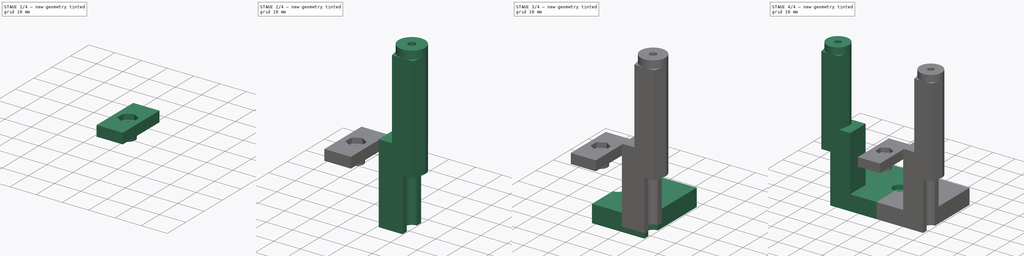
[diagram: build sequence overview — one tinted view per stage of 4, left to right]
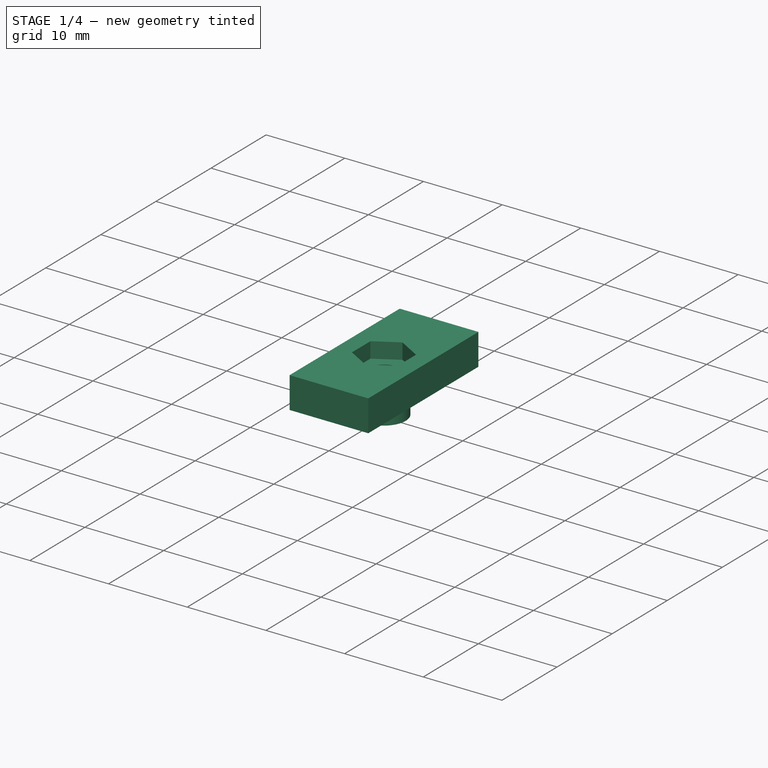
[diagram: stage 1 of 4 — iso view after this stage's code; geometry added in this stage tinted green]
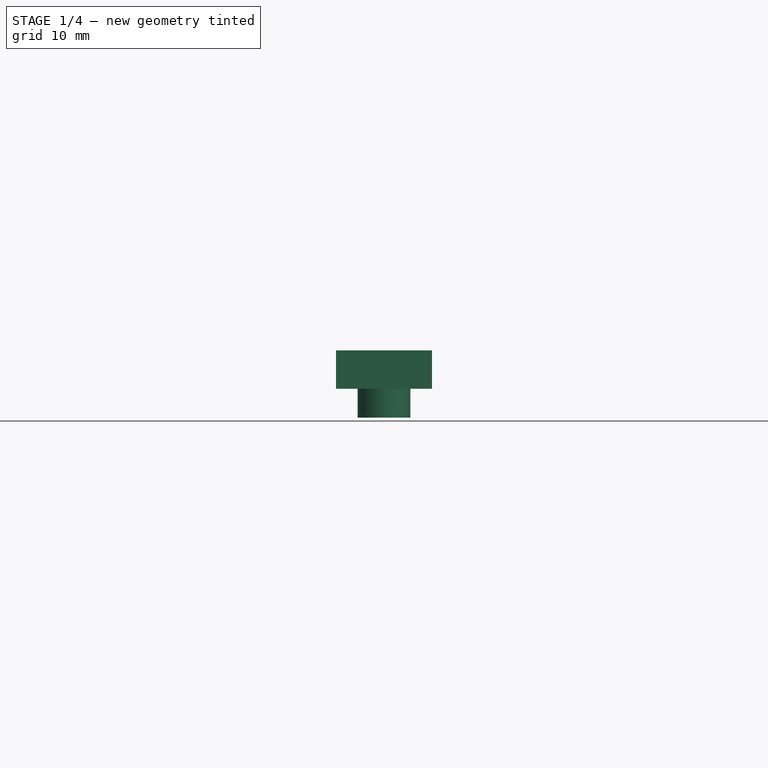
[diagram: stage 1 of 4 — front view after this stage's code; geometry added in this stage tinted green]
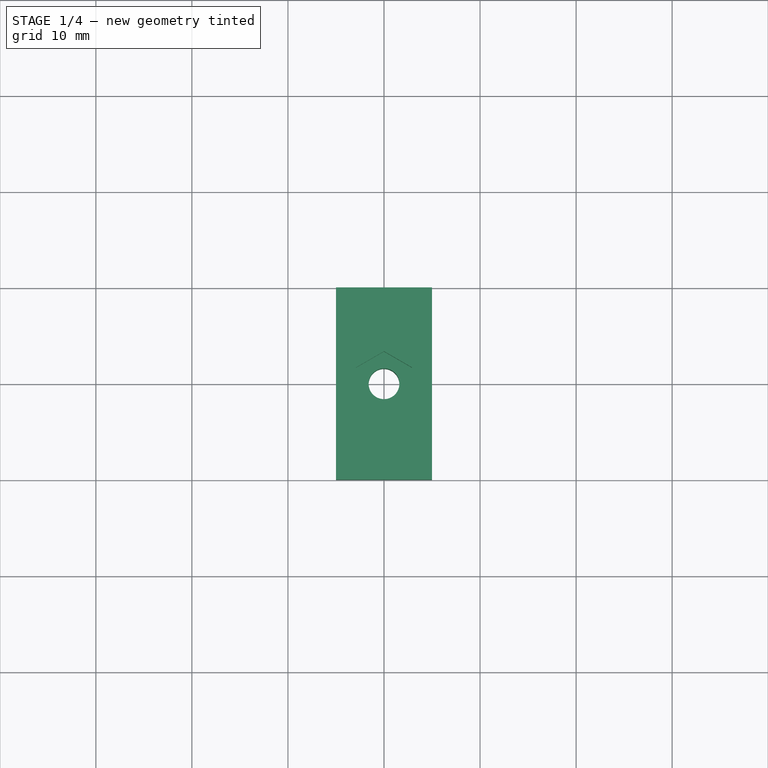
[diagram: stage 1 of 4 — top view after this stage's code; geometry added in this stage tinted green]
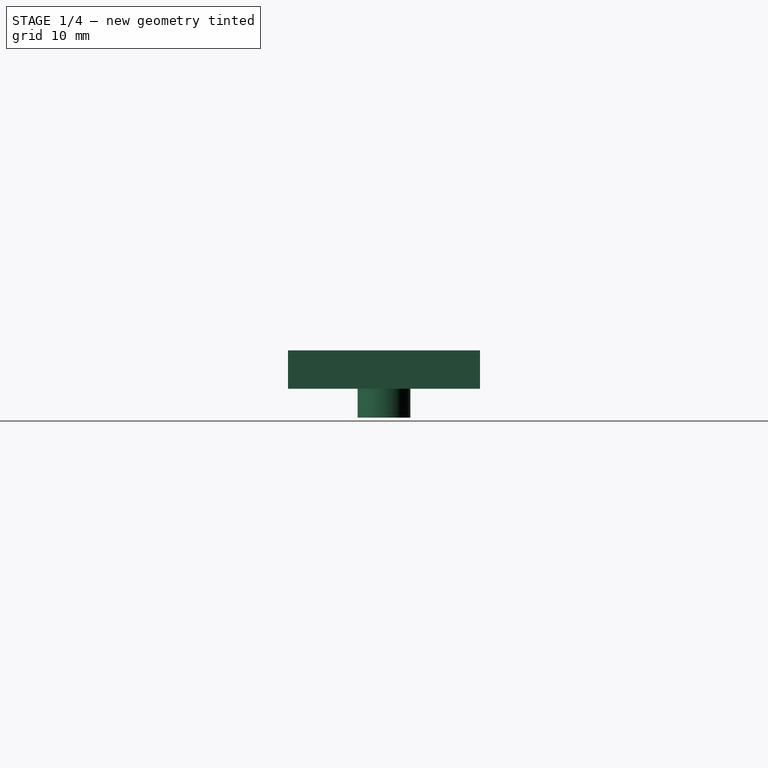
[diagram: stage 1 of 4 — right view after this stage's code; geometry added in this stage tinted green]
FCSTD DOCUMENT  (FreeCAD 0.19R24291 (Git))
Label: phoneclip-tripod
License: All rights reserved
LicenseURL: http://en.wikipedia.org/wiki/All_rights_reserved
objects: Sketcher::SketchObject×9, PartDesign::Pad×8, PartDesign::Body×2, PartDesign::Pocket×1, Part::Mirroring×1, Part::MultiFuse×1
note: 31 computed .brp shape members not serialized (recipe doc carries the construction recipe); baked Part::Feature solids carry a one-line shape summary decoded from their .brp

FEATURE [Sketcher::SketchObject] Sketch006
  FullyConstrained = true
  MapMode = 5
  Support = -> [XY_Plane001]
  sketch-geometry (2):
    g0: Circle CenterX=0 CenterY=0 CenterZ=0 NormalX=0 NormalY=0 NormalZ=1 AngleXU=0 Radius=1.6
    g1: Circle CenterX=0 CenterY=0 CenterZ=0 NormalX=0 NormalY=0 NormalZ=1 AngleXU=0 Radius=2.75
  constraints (4):
    c: Coincident(g0,g-1)
    c: Diameter(g0) = 3.2
    c: Coincident(g1,g0)
    c: Diameter(g1) = 5.5
FEATURE [PartDesign::Pad] Pad005
  Direction = (1,1,1)
  Length = 3
  Length2 = 100
  Profile = -> Sketch006
  Reversed = true
  Type = 0
FEATURE [Sketcher::SketchObject] Sketch007
  FullyConstrained = true
  MapMode = 5
  Support = -> [XY_Plane001]
  sketch-geometry (11):
    g0: LineSegment StartX=0 StartY=-3.34863 StartZ=0 EndX=2.9 EndY=-1.67432 EndZ=0
    g1: LineSegment StartX=2.9 StartY=-1.67432 StartZ=0 EndX=2.9 EndY=1.67432 EndZ=0
    g2: LineSegment StartX=2.9 StartY=1.67432 StartZ=0 EndX=0 EndY=3.34863 EndZ=0
    g3: LineSegment StartX=0 StartY=3.34863 StartZ=0 EndX=-2.9 EndY=1.67432 EndZ=0
    g4: LineSegment StartX=-2.9 StartY=1.67432 StartZ=0 EndX=-2.9 EndY=-1.67432 EndZ=0
    g5: LineSegment StartX=-2.9 StartY=-1.67432 StartZ=0 EndX=0 EndY=-3.34863 EndZ=0
    g6: Circle CenterX=0 CenterY=0 CenterZ=0 NormalX=0 NormalY=0 NormalZ=1 AngleXU=0 Radius=3.34863
    g7: LineSegment StartX=-5 StartY=10 StartZ=0 EndX=5 EndY=10 EndZ=0
    g8: LineSegment StartX=5 StartY=10 StartZ=0 EndX=5 EndY=-10 EndZ=0
    g9: LineSegment StartX=5 StartY=-10 StartZ=0 EndX=-5 EndY=-10 EndZ=0
    g10: LineSegment StartX=-5 StartY=-10 StartZ=0 EndX=-5 EndY=10 EndZ=0
  constraints (26):
    c: Coincident(g0,g1)
    c: Coincident(g1,g2)
    c: Coincident(g2,g3)
    c: Coincident(g3,g4)
    c: Coincident(g4,g5)
    c: Coincident(g5,g0)
    c: Equal(g0, g1-g5) x5
    c: PointOnObject(g0,g6)
    c: PointOnObject(g1,g6)
    c: PointOnObject(g2,g6)
    c: PointOnObject(g3,g6)
    c: PointOnObject(g4,g6)
    c: PointOnObject(g5,g6)
    c: Coincident(g6,g-1)
    c: PointOnObject(g5,g-2)
    c: DistanceX(g4,g0) = 5.8
    c: Coincident(g7,g8)
    c: Coincident(g8,g9)
    c: Coincident(g9,g10)
    c: Coincident(g10,g7)
    c: Horizontal(g9)
    c: Vertical(g10)
    c: Symmetric(g7,g7,g-2)
    c: Symmetric(g8,g7,g-1)
    c: DistanceX(g7,g7) = 10
    c: DistanceY(g8,g8) = 20
FEATURE [Sketcher::SketchObject] Sketch008
  FullyConstrained = true
  MapMode = 5
  Support = -> [XY_Plane001]
  sketch-geometry (2):
    g0: Circle CenterX=0 CenterY=0 CenterZ=0 NormalX=0 NormalY=0 NormalZ=1 AngleXU=0 Radius=3.5
    g1: Circle CenterX=0 CenterY=0 CenterZ=0 NormalX=0 NormalY=0 NormalZ=1 AngleXU=0 Radius=1.6
  constraints (4):
    c: Coincident(g1,g0)
    c: Diameter(g1) = 3.2
    c: Diameter(g0) = 7
    c: Coincident(g1,g-1)
FEATURE [PartDesign::Pad] Pad006
  BaseFeature = -> Pad005
  Direction = (1,1,1)
  Length = 2
  Length2 = 100
  Profile = -> Sketch008
  Type = 0
FEATURE [PartDesign::Pad] Pad007
  BaseFeature = -> Pad006
  Direction = (1,1,1)
  Length = 4
  Length2 = 100
  Profile = -> Sketch007
  Type = 0
FEATURE [PartDesign::Body] Body001  label="nutholder"
  Group = -> [Sketch006,Pad005,Sketch007,Sketch008,Pad006,Pad007]
  Origin = -> Origin001
  Tip = -> Pad007
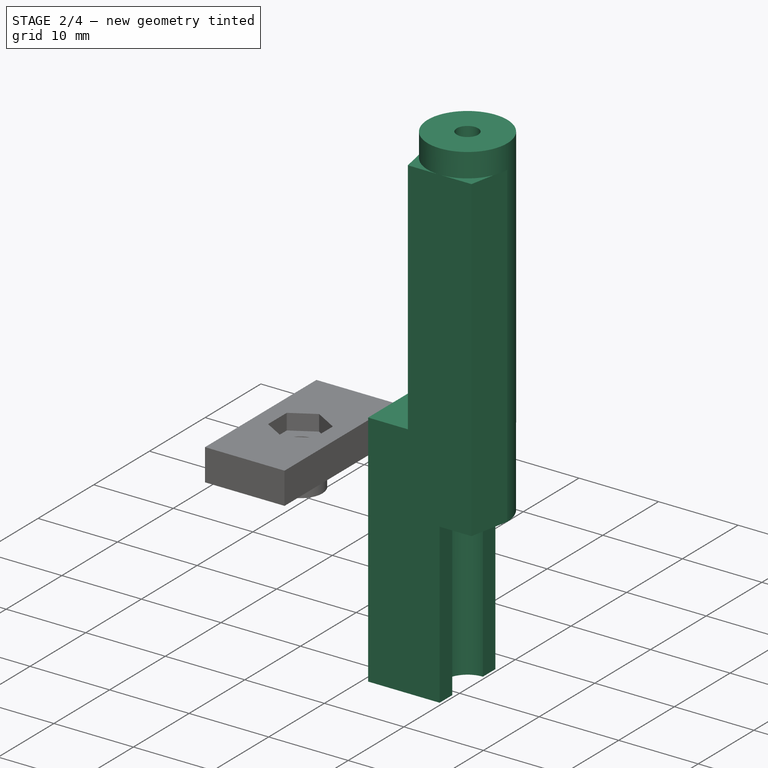
[diagram: stage 2 of 4 — iso view after this stage's code; geometry added in this stage tinted green]
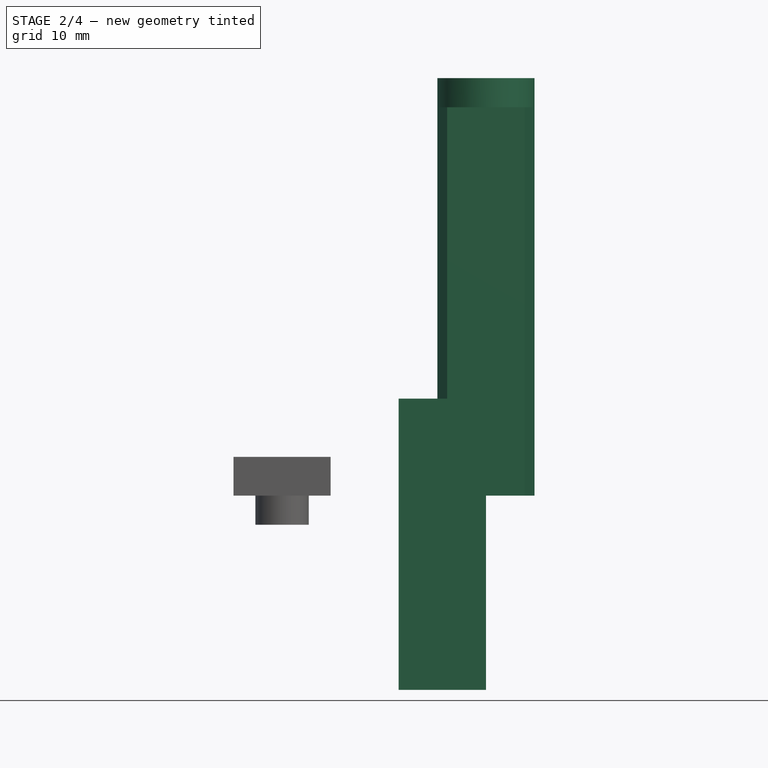
[diagram: stage 2 of 4 — front view after this stage's code; geometry added in this stage tinted green]
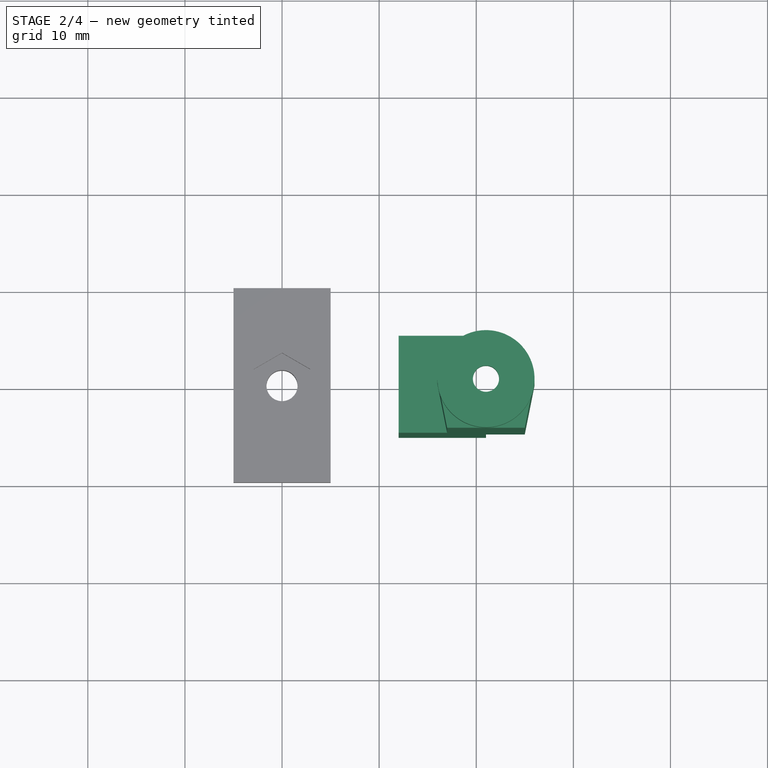
[diagram: stage 2 of 4 — top view after this stage's code; geometry added in this stage tinted green]
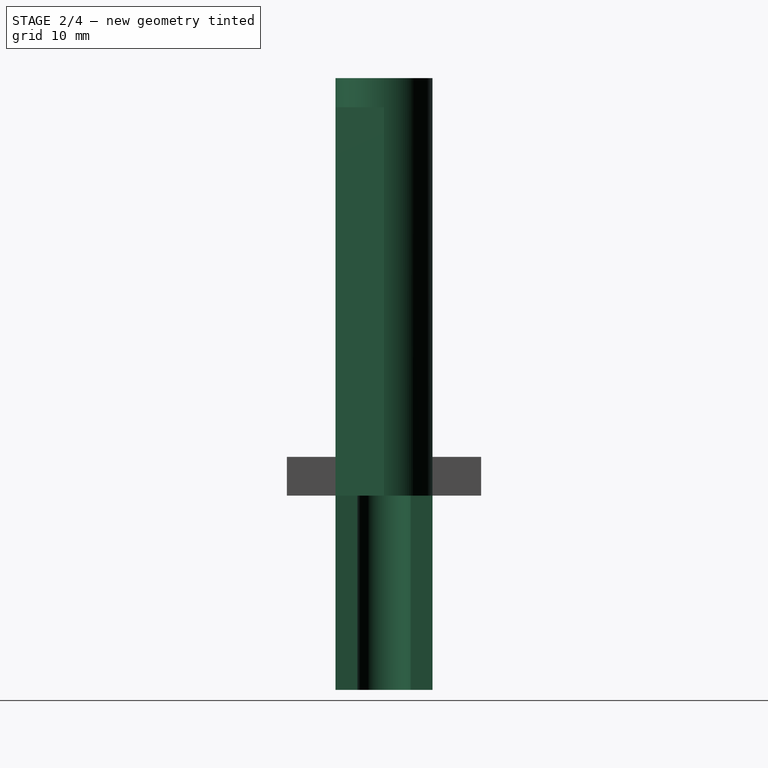
[diagram: stage 2 of 4 — right view after this stage's code; geometry added in this stage tinted green]
FEATURE [Sketcher::SketchObject] Sketch
  FullyConstrained = true
  MapMode = 5
  Support = -> [XY_Plane]
  sketch-geometry (5):
    g0: Circle CenterX=21 CenterY=0 CenterZ=0 NormalX=0 NormalY=0 NormalZ=1 AngleXU=0 Radius=2.75
    g1: ArcOfCircle CenterX=21 CenterY=0 CenterZ=0 NormalX=0 NormalY=0 NormalZ=1 AngleXU=0 Radius=5 StartAngle=0 EndAngle=3.14159
    g2: LineSegment StartX=16 StartY=6e-16 StartZ=0 EndX=17 EndY=-5 EndZ=0
    g3: LineSegment StartX=25 StartY=-5 StartZ=0 EndX=17 EndY=-5 EndZ=0
    g4: LineSegment StartX=25 StartY=-5 StartZ=0 EndX=26 EndY=0 EndZ=0
  constraints (15):
    c: Diameter(g0) = 5.5
    c: Coincident(g1,g0)
    c: PointOnObject(g1,g-1)
    c: PointOnObject(g1,g-1)
    c: Radius(g1) = 5
    c: Coincident(g2,g1)
    c: Coincident(g3,g2)
    c: Horizontal(g3)
    c: Coincident(g4,g3)
    c: Coincident(g4,g1)
    c: DistanceX(g3,g3) = 8
    c: Equal(g2,g4)
    c: DistanceY(g2,g2) = 5
    c: DistanceX(g0) = 21
    c: PointOnObject(g0,g-1)
FEATURE [PartDesign::Pad] Pad  label="selongsong"
  Direction = (1,1,1)
  Length = 40
  Length2 = 100
  Profile = -> Sketch
  Type = 0
FEATURE [Sketcher::SketchObject] Sketch001
  AttachmentOffset = pos=(0,0,40) rot=(0,0,1;0rad)
  FullyConstrained = true
  MapMode = 5
  Placement = pos=(0,0,40) rot=(0,0,1;0rad)
  Support = -> [XY_Plane]
  sketch-geometry (2):
    g0: Circle CenterX=21 CenterY=0 CenterZ=0 NormalX=0 NormalY=0 NormalZ=1 AngleXU=0 Radius=5
    g1: Circle CenterX=21 CenterY=0 CenterZ=0 NormalX=0 NormalY=0 NormalZ=1 AngleXU=0 Radius=1.35
  constraints (5):
    c: PointOnObject(g0,g-1)
    c: Coincident(g1,g0)
    c: Diameter(g0) = 10
    c: Diameter(g1) = 2.7
    c: DistanceX(g0) = 21
FEATURE [PartDesign::Pad] Pad001  label="stopper"
  BaseFeature = -> Pad
  Direction = (1,1,1)
  Length = 3
  Length2 = 100
  Profile = -> Sketch001
  Type = 0
FEATURE [Sketcher::SketchObject] Sketch002
  AttachmentOffset = pos=(0,0,0) rot=(0,1,0;3.14159rad)
  FullyConstrained = true
  MapMode = 5
  Placement = pos=(0,0,0) rot=(0,1,0;3.14159rad)
  Support = -> [XY_Plane]
  sketch-geometry (6):
    g0: LineSegment StartX=-21 StartY=5 StartZ=0 EndX=-12 EndY=5 EndZ=0
    g1: LineSegment StartX=-12 StartY=5 StartZ=0 EndX=-12 EndY=-5 EndZ=0
    g2: LineSegment StartX=-12 StartY=-5 StartZ=0 EndX=-21 EndY=-5 EndZ=0
    g3: ArcOfCircle CenterX=-21 CenterY=0 CenterZ=0 NormalX=0 NormalY=0 NormalZ=1 AngleXU=0 Radius=2.75 StartAngle=4.71239 EndAngle=7.85398
    g4: LineSegment StartX=-21 StartY=2.75 StartZ=0 EndX=-21 EndY=5 EndZ=0
    g5: LineSegment StartX=-21 StartY=-2.75 StartZ=0 EndX=-21 EndY=-5 EndZ=0
  constraints (19):
    c: Horizontal(g0)
    c: Coincident(g1,g0)
    c: Vertical(g1)
    c: Coincident(g2,g1)
    c: Horizontal(g2)
    c: DistanceX(g2,g2) = 9
    c: DistanceY(g1,g1) = 10
    c: Vertical(g0,g2)
    c: PointOnObject(g3,g-1)
    c: DistanceX(g3) = -21
    c: Vertical(g3,g3)
    c: Diameter(g3) = 5.5
    c: Coincident(g4,g3)
    c: Coincident(g4,g0)
    c: Vertical(g4)
    c: Coincident(g5,g3)
    c: Coincident(g5,g2)
    c: Angle(g3) = 3.14159
    c: Equal(g5,g4)
FEATURE [PartDesign::Pad] Pad002  label="sikil"
  BaseFeature = -> Pad001
  Direction = (1,1,1)
  Length = 20
  Length2 = 10
  Profile = -> Sketch002
  Type = 4
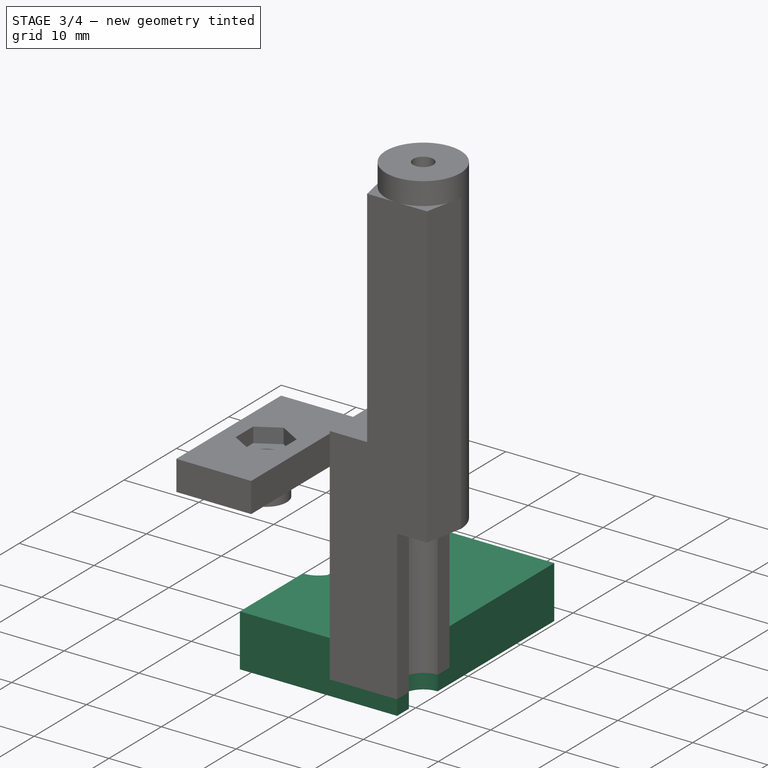
[diagram: stage 3 of 4 — iso view after this stage's code; geometry added in this stage tinted green]
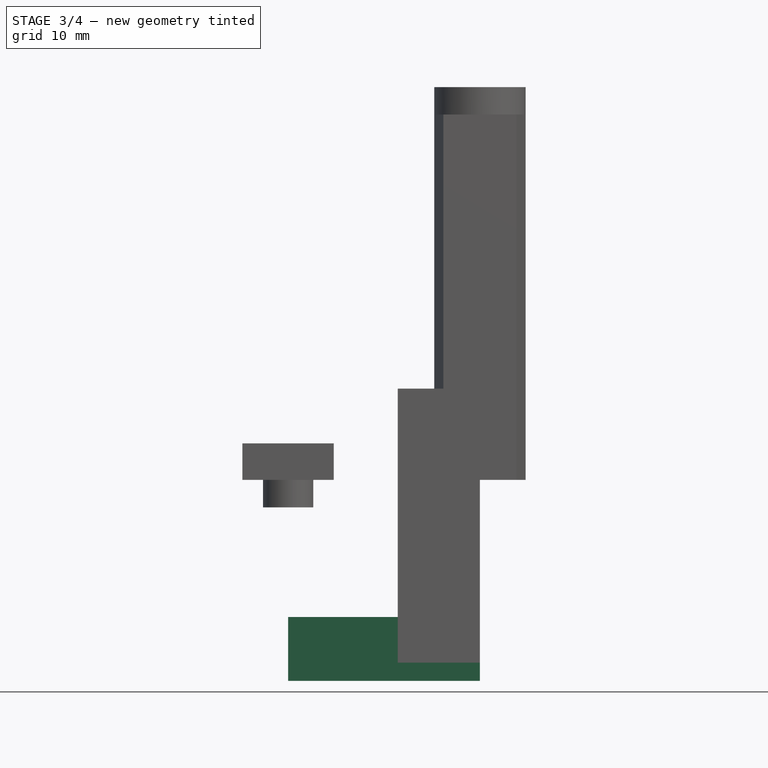
[diagram: stage 3 of 4 — front view after this stage's code; geometry added in this stage tinted green]
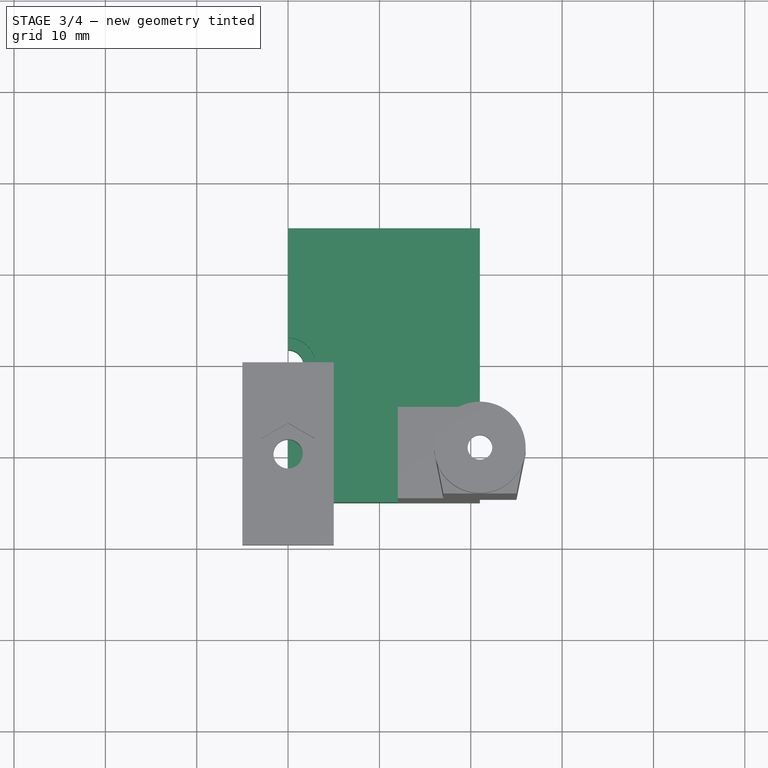
[diagram: stage 3 of 4 — top view after this stage's code; geometry added in this stage tinted green]
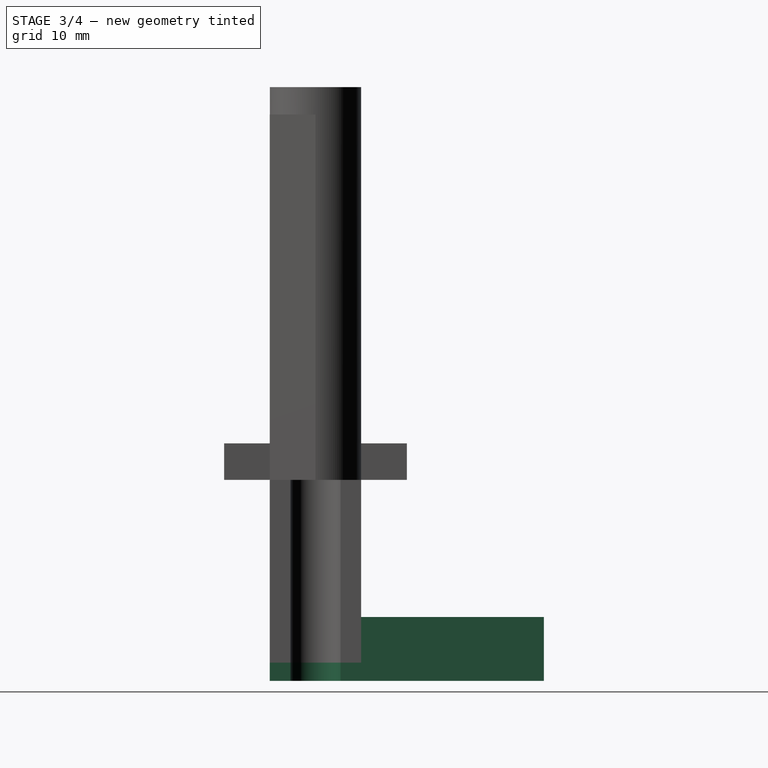
[diagram: stage 3 of 4 — right view after this stage's code; geometry added in this stage tinted green]
FEATURE [Sketcher::SketchObject] Sketch003
  AttachmentOffset = pos=(0,0,-20) rot=(0,1,0;3.14159rad)
  FullyConstrained = true
  MapMode = 5
  Placement = pos=(0,0,-20) rot=(0,1,0;3.14159rad)
  Support = -> [XY_Plane]
  sketch-geometry (8):
    g0: LineSegment StartX=-21 StartY=-5 StartZ=0 EndX=0 EndY=-5 EndZ=0
    g1: LineSegment StartX=0 StartY=25 StartZ=0 EndX=-21 EndY=25 EndZ=0
    g2: ArcOfCircle CenterX=-21 CenterY=0 CenterZ=0 NormalX=0 NormalY=0 NormalZ=1 AngleXU=0 Radius=2.75 StartAngle=4.71239 EndAngle=7.85398
    g3: LineSegment StartX=-21 StartY=2.75 StartZ=0 EndX=-21 EndY=25 EndZ=0
    g4: LineSegment StartX=-21 StartY=-2.75 StartZ=0 EndX=-21 EndY=-5 EndZ=0
    g5: ArcOfCircle CenterX=0 CenterY=10 CenterZ=0 NormalX=0 NormalY=0 NormalZ=1 AngleXU=0 Radius=1.7 StartAngle=1.5708 EndAngle=4.71239
    g6: LineSegment StartX=0 StartY=25 StartZ=0 EndX=0 EndY=11.7 EndZ=0
    g7: LineSegment StartX=-3e-16 StartY=8.3 StartZ=0 EndX=-3e-16 EndY=-5 EndZ=0
  constraints (26):
    c: Horizontal(g0)
    c: Horizontal(g1)
    c: PointOnObject(g1,g-2)
    c: DistanceX(g0,g0) = 21
    c: PointOnObject(g2,g-1)
    c: Coincident(g3,g2)
    c: Coincident(g3,g1)
    c: Vertical(g3)
    c: Coincident(g4,g2)
    c: Coincident(g4,g0)
    c: Vertical(g4)
    c: Diameter(g2) = 5.5
    c: Vertical(g2,g1)
    c: DistanceY(g0,g-1) = 5
    c: Vertical(g2,g2)
    c: DistanceY(g2,g1) = 25
    c: PointOnObject(g5,g-2)
    c: PointOnObject(g5,g-2)
    c: PointOnObject(g5,g-2)
    c: Coincident(g6,g1)
    c: Coincident(g6,g5)
    c: Diameter(g5) = 3.4
    c: DistanceY(g-1,g5) = 10
    c: Coincident(g7,g5)
    c: Coincident(g7,g0)
    c: Vertical(g7)
FEATURE [PartDesign::Pad] Pad003
  BaseFeature = -> Pad002
  Direction = (1,1,1)
  Length = 2
  Length2 = 5
  Profile = -> Sketch003
  Type = 4
FEATURE [Sketcher::SketchObject] Sketch004
  FullyConstrained = true
  MapMode = 5
  Placement = pos=(2.6e-15,0,-15) rot=(0,0,1;0rad)
  Support = -> [Pad003]
  sketch-geometry (1):
    g0: Circle CenterX=0 CenterY=10 CenterZ=0 NormalX=0 NormalY=0 NormalZ=1 AngleXU=0 Radius=3
  constraints (3):
    c: PointOnObject(g0,g-2)
    c: DistanceY(g-1,g0) = 10
    c: Diameter(g0) = 6
FEATURE [PartDesign::Pocket] Pocket
  BaseFeature = -> Pad003
  Length = 2
  Length2 = 100
  Profile = -> Sketch004
  Type = 0
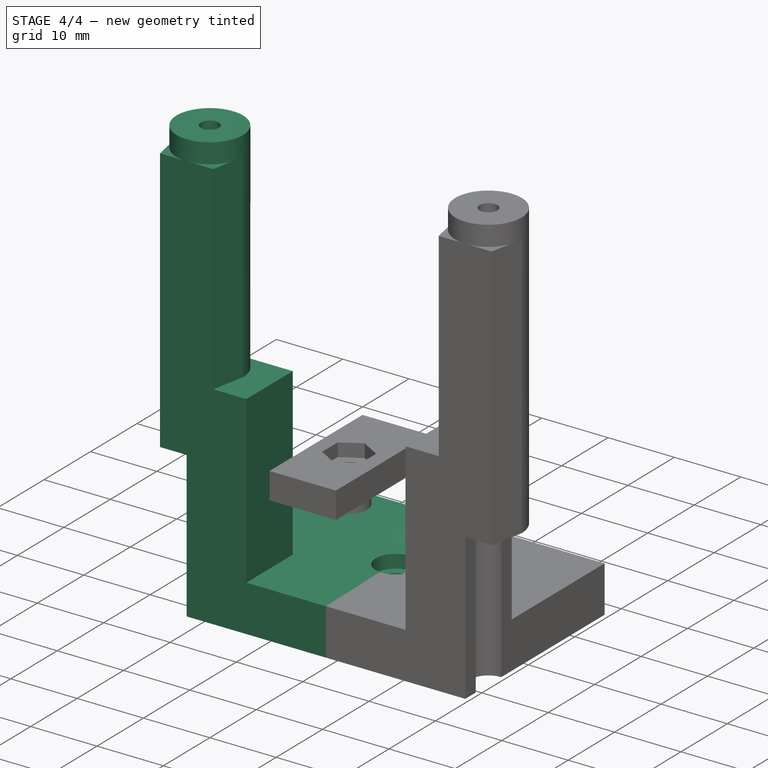
[diagram: stage 4 of 4 — iso view after this stage's code; geometry added in this stage tinted green]
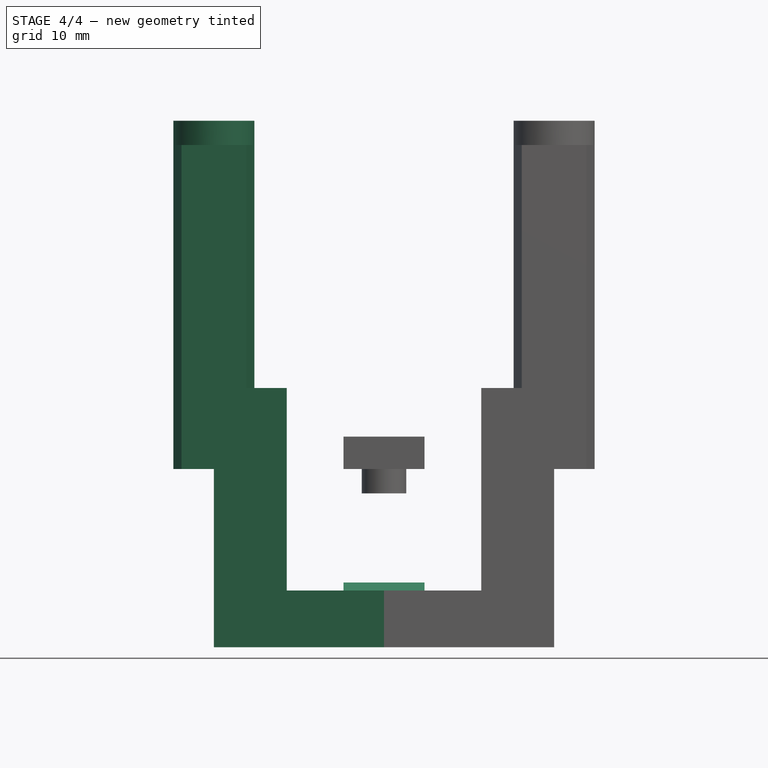
[diagram: stage 4 of 4 — front view after this stage's code; geometry added in this stage tinted green]
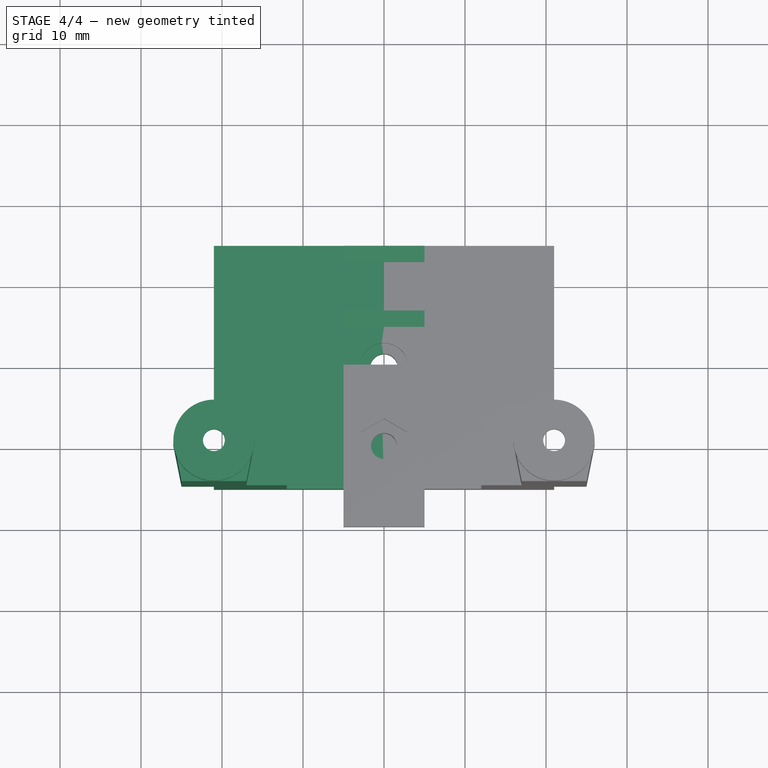
[diagram: stage 4 of 4 — top view after this stage's code; geometry added in this stage tinted green]
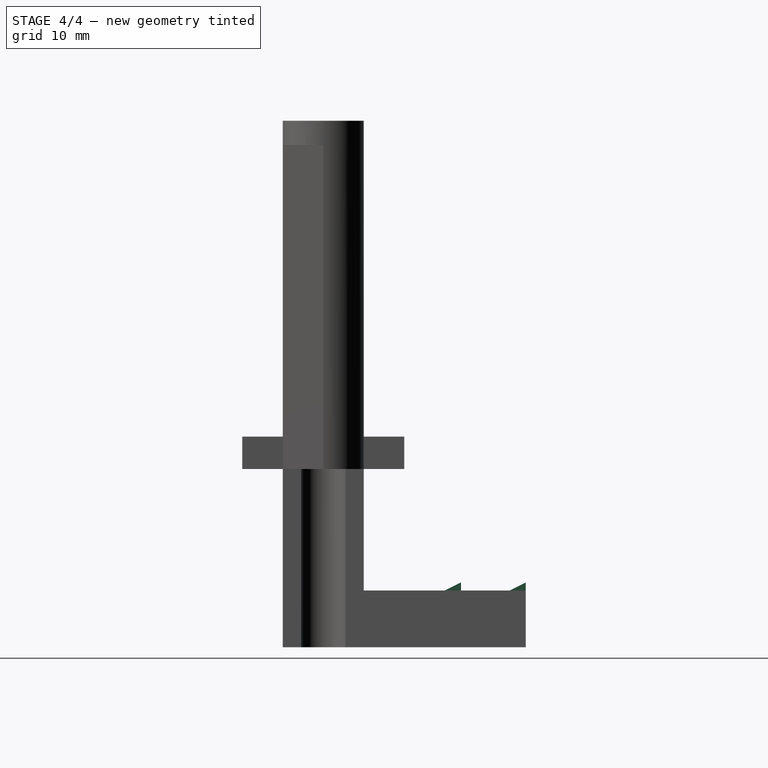
[diagram: stage 4 of 4 — right view after this stage's code; geometry added in this stage tinted green]
FEATURE [Sketcher::SketchObject] Sketch005
  FullyConstrained = false
  MapMode = 5
  Placement = pos=(0,0,0) rot=(0.57735,0.57735,0.57735;2.0944rad)
  Support = -> [YZ_Plane]
  sketch-geometry (6):
    g0: LineSegment StartX=15 StartY=-15 StartZ=0 EndX=17 EndY=-14 EndZ=0
    g1: LineSegment StartX=17 StartY=-14 StartZ=0 EndX=17 EndY=-15 EndZ=0
    g2: LineSegment StartX=17 StartY=-15 StartZ=0 EndX=15 EndY=-15 EndZ=0
    g3: LineSegment StartX=23 StartY=-15 StartZ=0 EndX=25 EndY=-14 EndZ=0
    g4: LineSegment StartX=25 StartY=-14 StartZ=0 EndX=25 EndY=-15 EndZ=0
    g5: LineSegment StartX=25 StartY=-15 StartZ=0 EndX=23 EndY=-15 EndZ=0
  constraints (10):
    c: Coincident(g0,g1)
    c: Vertical(g1)
    c: Coincident(g1,g2)
    c: Coincident(g2,g0)
    c: Horizontal(g2)
    c: Coincident(g3,g4)
    c: Vertical(g4)
    c: Coincident(g4,g5)
    c: Coincident(g5,g3)
    c: Horizontal(g5)
FEATURE [PartDesign::Pad] Pad004
  BaseFeature = -> Pocket
  Direction = (1,1,1)
  Length = 5
  Length2 = 100
  Profile = -> Sketch005
  Type = 0
FEATURE [PartDesign::Body] Body  label="half"
  Group = -> [Sketch,Pad,Sketch001,Pad001,Sketch002,Pad002,Sketch003,Pad003,Sketch004,Pocket,Sketch005,Pad004]
  Origin = -> Origin
  Tip = -> Pad004
FEATURE [Part::Mirroring] mirror  label="Pad004 (mirrored)"
  Base = (1e-15,-5,-27)
  Normal = (1,0,0)
  Source = -> Pad004
FEATURE [Part::MultiFuse] Fusion
  Shapes = -> [Body,mirror]
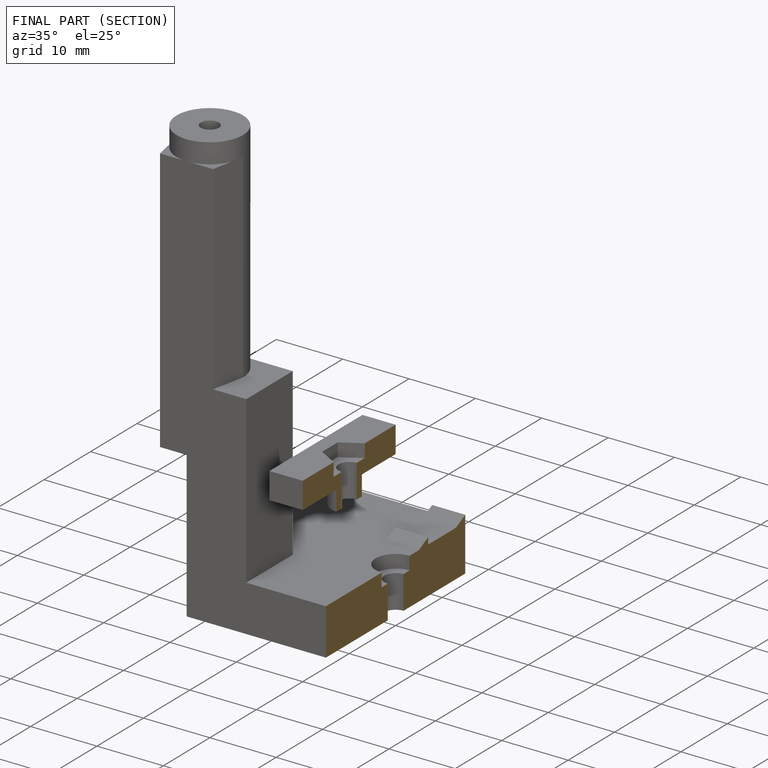
[diagram: finished part — half-section view (interior)]
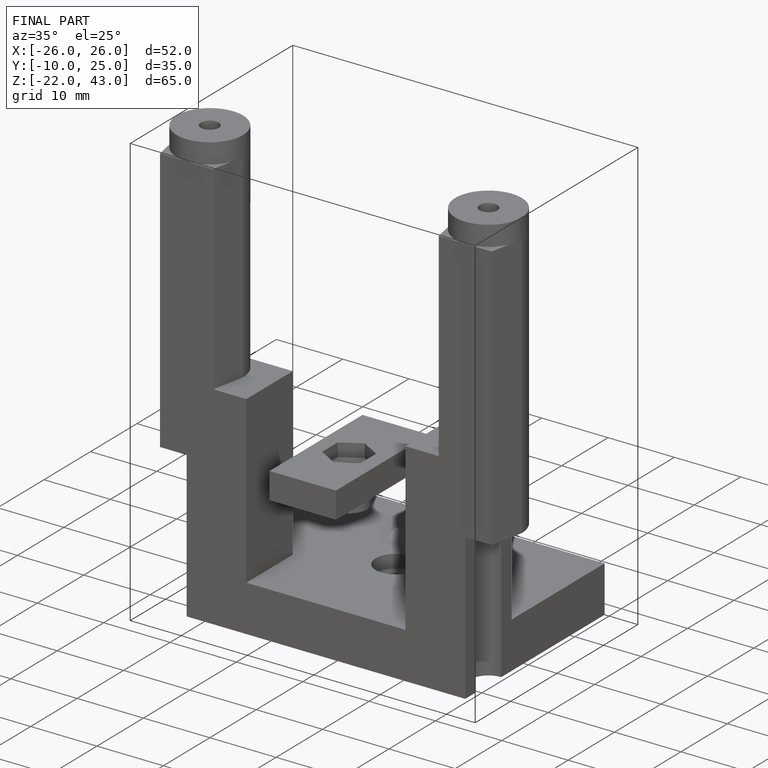
[diagram: finished part — iso view with bounding-box wireframe]
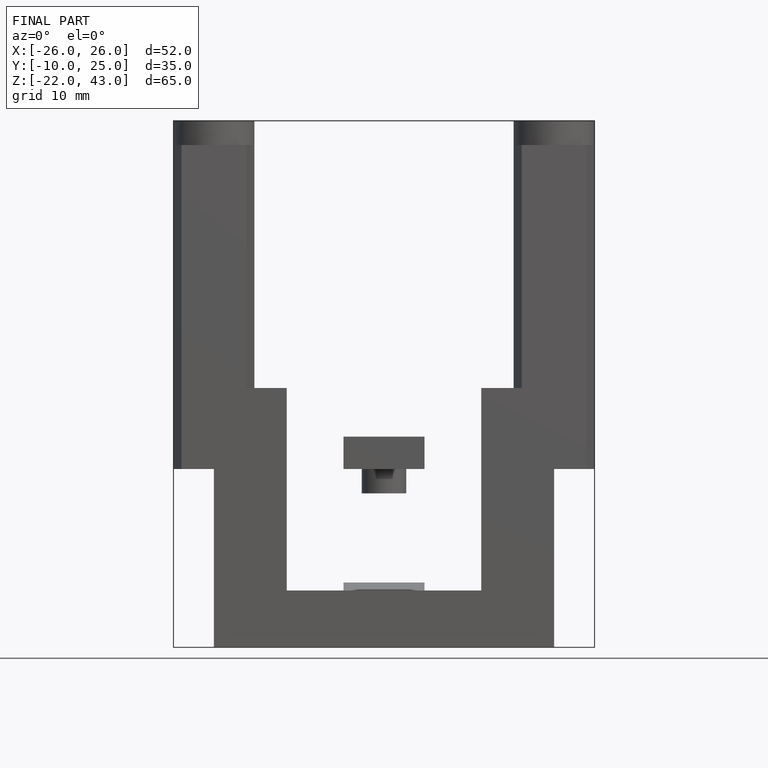
[diagram: finished part — front view with bounding-box wireframe]
